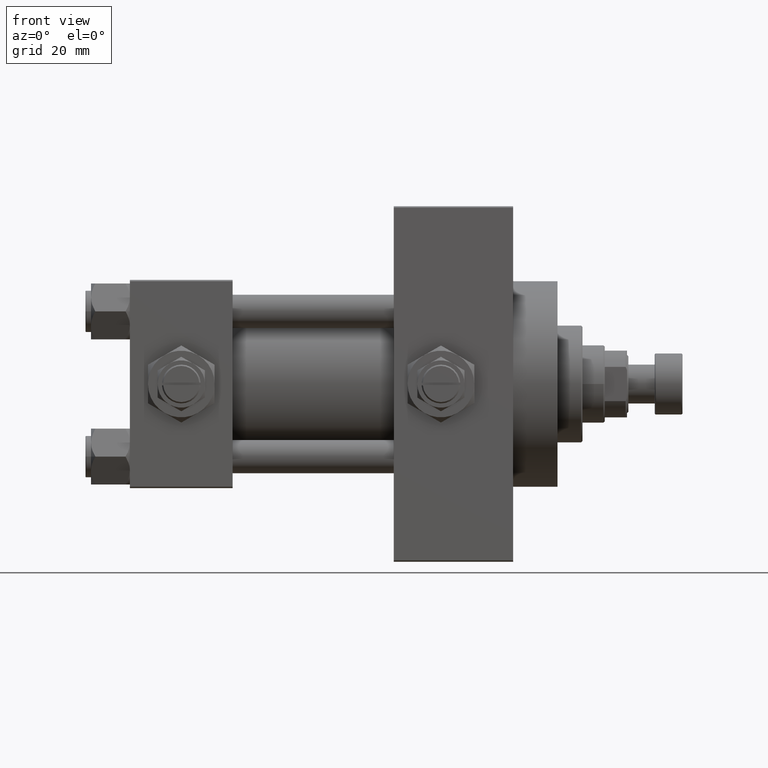
[diagram: clean part render]
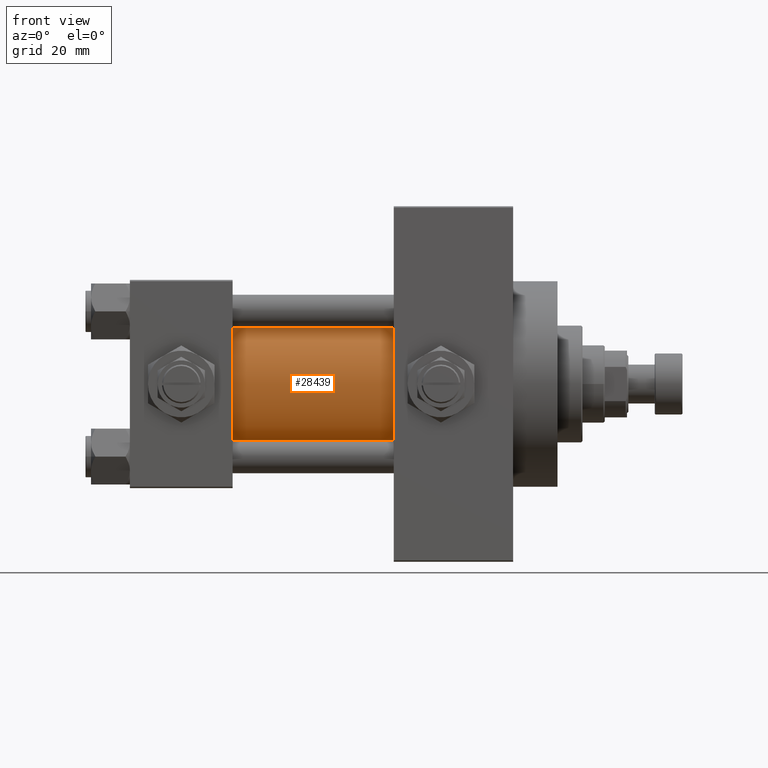
[diagram: same view with one face highlighted and labeled with its STEP entity id]
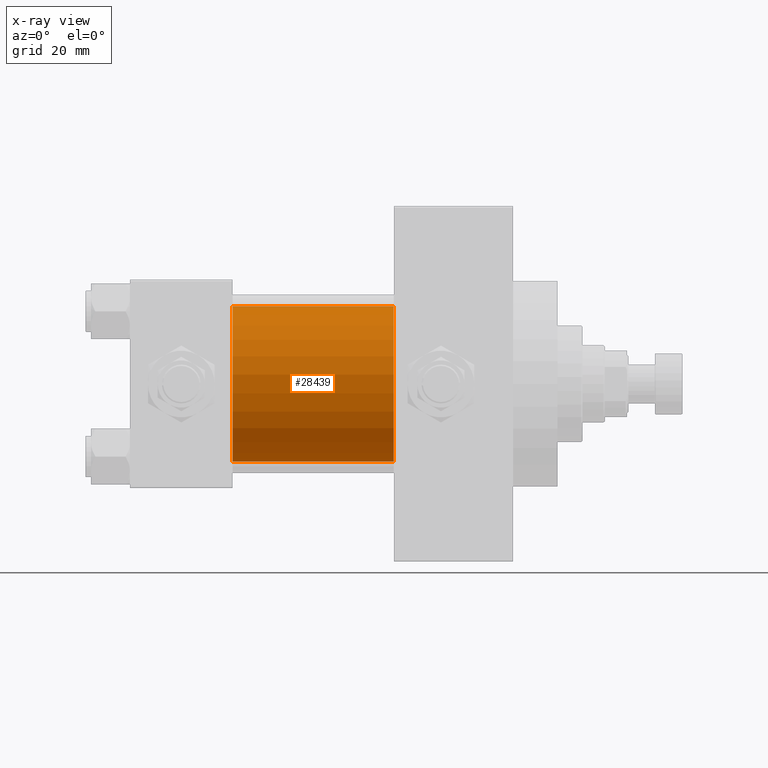
[diagram: x-ray of the same camera — body ghosted, the highlighted face saturated]
A machine part, front view. The second image highlights one B-rep face of the part: STEP entity #28439.
The next image is the same camera in x-ray: the body ghosted, the highlighted face saturated — about 2% of this face is hidden behind the body in this view.
In plain terms, the highlighted cylindrical surface (partial cylindrical patch) has radius 28 mm, axis along (-1, -0, -0).
Its self-contained STEP definition (entity closure, byte-faithful):
#28 = DIRECTION ( 'NONE',  ( 0.000000000000000000, 0.000000000000000000, 1.000000000000000000 ) ) ;
#376 = CIRCLE ( 'NONE', #45374, 28.00000000000000000 ) ;
#828 = CYLINDRICAL_SURFACE ( 'NONE', #38911, 28.00000000000000000 ) ;
#1063 = CARTESIAN_POINT ( 'NONE',  ( 95.00000000000000000, 8.269258236473776482E-16, -28.00000000000000000 ) ) ;
#3059 = DIRECTION ( 'NONE',  ( -1.000000000000000000, -0.000000000000000000, -0.000000000000000000 ) ) ;
#5738 = CIRCLE ( 'NONE', #30598, 28.00000000000000000 ) ;
#8103 = FACE_OUTER_BOUND ( 'NONE', #39387, .T. ) ;
#9745 = VECTOR ( 'NONE', #48288, 1000.000000000000000 ) ;
#10304 = LINE ( 'NONE', #18357, #9745 ) ;
#12075 = CARTESIAN_POINT ( 'NONE',  ( 37.00000000000000000, -2.602085213965210642E-15, 0.000000000000000000 ) ) ;
#13737 = DIRECTION ( 'NONE',  ( 0.000000000000000000, 0.000000000000000000, -1.000000000000000000 ) ) ;
#15286 = ORIENTED_EDGE ( 'NONE', *, *, #16962, .F. ) ;
#15817 = EDGE_CURVE ( 'NONE', #34741, #26696, #32048, .T. ) ;
#16725 = EDGE_CURVE ( 'NONE', #26696, #34529, #5738, .T. ) ;
#16962 = EDGE_CURVE ( 'NONE', #31602, #34529, #10304, .T. ) ;
#17783 = CARTESIAN_POINT ( 'NONE',  ( 37.00000000000000000, -2.602085213965210642E-15, 28.00000000000000000 ) ) ;
#18357 = CARTESIAN_POINT ( 'NONE',  ( 95.00000000000000000, 8.269258236473776482E-16, -28.00000000000000000 ) ) ;
#20932 = CARTESIAN_POINT ( 'NONE',  ( 37.00000000000000000, 8.269258236473776482E-16, -28.00000000000000000 ) ) ;
#21327 = ORIENTED_EDGE ( 'NONE', *, *, #16725, .T. ) ;
#26696 = VERTEX_POINT ( 'NONE', #17783 ) ;
#27664 = CARTESIAN_POINT ( 'NONE',  ( 95.00000000000000000, -2.602085213965210642E-15, 28.00000000000000000 ) ) ;
#27746 = DIRECTION ( 'NONE',  ( 0.000000000000000000, 0.000000000000000000, 1.000000000000000000 ) ) ;
#28439 = ADVANCED_FACE ( 'NONE', ( #8103 ), #828, .T. ) ;
#28593 = DIRECTION ( 'NONE',  ( 1.000000000000000000, 0.000000000000000000, 0.000000000000000000 ) ) ;
#30598 = AXIS2_PLACEMENT_3D ( 'NONE', #12075, #38264, #28 ) ;
#31602 = VERTEX_POINT ( 'NONE', #1063 ) ;
#32048 = LINE ( 'NONE', #35822, #42617 ) ;
#34529 = VERTEX_POINT ( 'NONE', #20932 ) ;
#34536 = CARTESIAN_POINT ( 'NONE',  ( 95.00000000000000000, -2.602085213965210642E-15, 0.000000000000000000 ) ) ;
#34741 = VERTEX_POINT ( 'NONE', #27664 ) ;
#35822 = CARTESIAN_POINT ( 'NONE',  ( 95.00000000000000000, -2.602085213965210642E-15, 28.00000000000000000 ) ) ;
#36874 = CARTESIAN_POINT ( 'NONE',  ( 95.00000000000000000, -2.602085213965210642E-15, 0.000000000000000000 ) ) ;
#37685 = ORIENTED_EDGE ( 'NONE', *, *, #41097, .F. ) ;
#38264 = DIRECTION ( 'NONE',  ( 1.000000000000000000, -0.000000000000000000, 0.000000000000000000 ) ) ;
#38911 = AXIS2_PLACEMENT_3D ( 'NONE', #34536, #43076, #27746 ) ;
#39387 = EDGE_LOOP ( 'NONE', ( #15286, #37685, #49545, #21327 ) ) ;
#41097 = EDGE_CURVE ( 'NONE', #34741, #31602, #376, .T. ) ;
#42617 = VECTOR ( 'NONE', #3059, 1000.000000000000000 ) ;
#43076 = DIRECTION ( 'NONE',  ( -1.000000000000000000, -0.000000000000000000, -0.000000000000000000 ) ) ;
#45374 = AXIS2_PLACEMENT_3D ( 'NONE', #36874, #28593, #13737 ) ;
#48288 = DIRECTION ( 'NONE',  ( -1.000000000000000000, -0.000000000000000000, -0.000000000000000000 ) ) ;
#49545 = ORIENTED_EDGE ( 'NONE', *, *, #15817, .T. ) ;